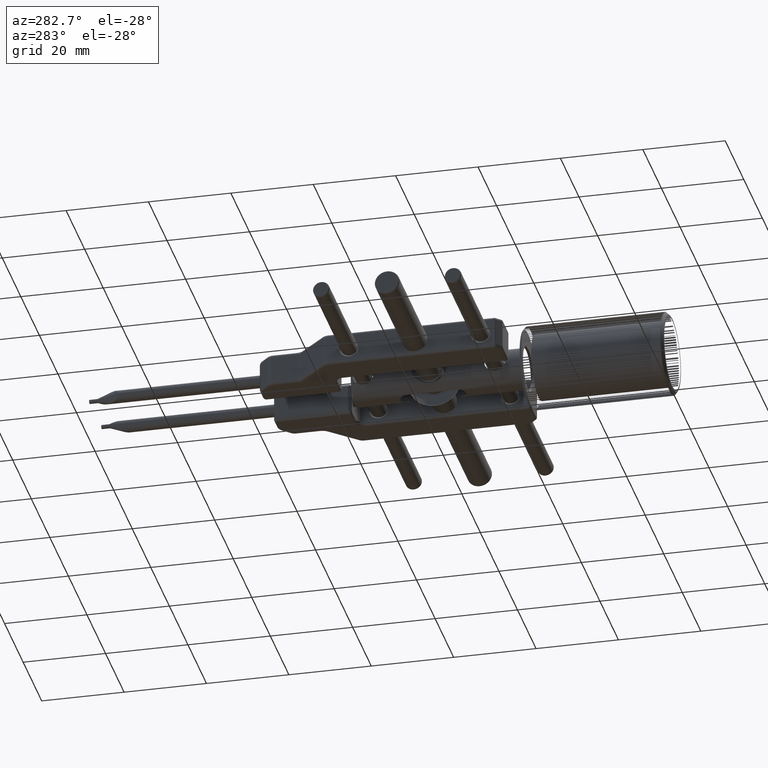
[diagram: clean part render]
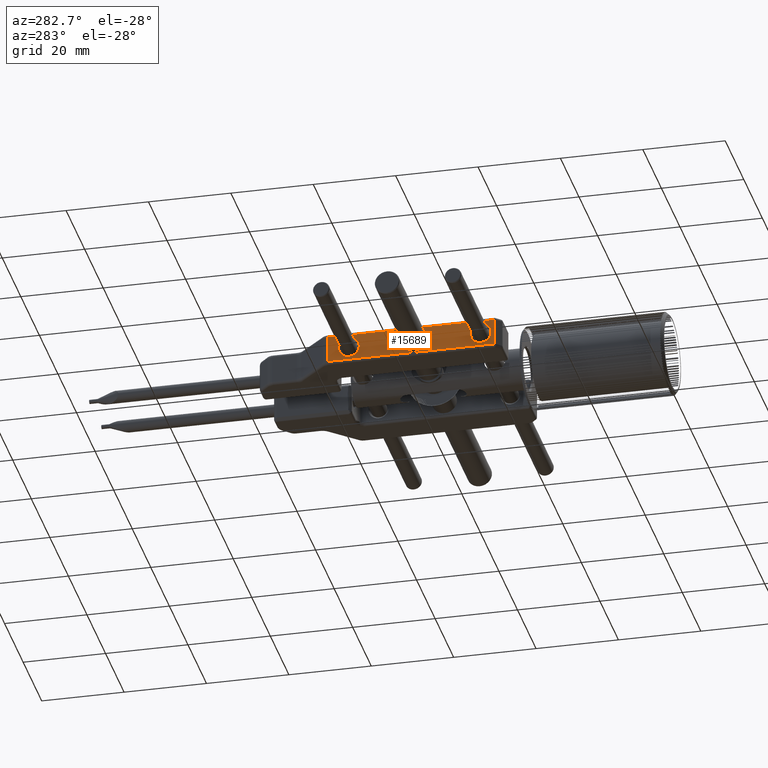
[diagram: same view with one face highlighted and labeled with its STEP entity id]
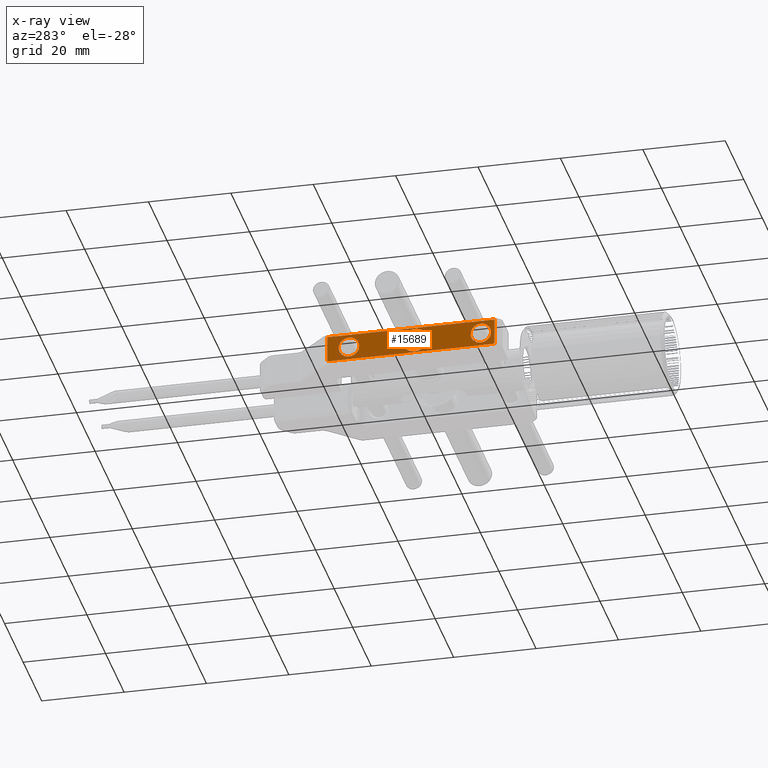
[diagram: x-ray of the same camera — body ghosted, the highlighted face saturated]
A machine part, auxiliary view. The second image highlights one B-rep face of the part: STEP entity #15689.
The next image is the same camera in x-ray: the body ghosted, the highlighted face saturated — about 0% of this face is hidden behind the body in this view.
In plain terms, the highlighted planar face has unit normal (1, 0, -0).
Its self-contained STEP definition (entity closure, byte-faithful):
#24 = CARTESIAN_POINT ( 'NONE',  ( 4.999999999999991118, -19.72962801546928091, -2.718744669488669885 ) ) ;
#250 = CARTESIAN_POINT ( 'NONE',  ( 4.999999999999992895, -24.00000000000000711, -0.3816654405975243858 ) ) ;
#882 = CARTESIAN_POINT ( 'NONE',  ( 4.999999999999986677, 0.9999999999999993339, 3.249999999999999556 ) ) ;
#1043 = CARTESIAN_POINT ( 'NONE',  ( 4.999999999999992006, -23.80664356347271848, 1.059872421203786441 ) ) ;
#2148 = CARTESIAN_POINT ( 'NONE',  ( 4.999999999999990230, -18.00000000000000711, -8.673617379884035472E-16 ) ) ;
#2273 = EDGE_LOOP ( 'NONE', ( #23018 ) ) ;
#2800 = CARTESIAN_POINT ( 'NONE',  ( 4.999999999999989342, -19.91976774133159012, 2.798882031327515563 ) ) ;
#2947 = CARTESIAN_POINT ( 'NONE',  ( 4.999999999999991118, -18.00000000000001066, -0.1906543481778608384 ) ) ;
#3168 = CARTESIAN_POINT ( 'NONE',  ( 4.999999999999990230, -19.26182743280707754, -2.460936086254958077 ) ) ;
#3841 = CARTESIAN_POINT ( 'NONE',  ( 4.999999999999992006, -23.74983098182548602, -1.199735456755939289 ) ) ;
#3897 = LINE ( 'NONE', #34543, #4188 ) ;
#4059 = CARTESIAN_POINT ( 'NONE',  ( 4.999999999999992006, -23.46093608625202975, -1.738172567194389284 ) ) ;
#4188 = VECTOR ( 'NONE', #25351, 1000.000000000000000 ) ;
#4402 = CARTESIAN_POINT ( 'NONE',  ( 4.999999999999989342, -22.12643122562515785, 2.780592659859205007 ) ) ;
#4640 = ORIENTED_EDGE ( 'NONE', *, *, #5926, .F. ) ;
#4895 = FACE_BOUND ( 'NONE', #2273, .T. ) ;
#5059 = VERTEX_POINT ( 'NONE', #27000 ) ;
#5075 = CARTESIAN_POINT ( 'NONE',  ( 4.999999999999991118, -22.97502420098260600, 2.267669013698190295 ) ) ;
#5293 = EDGE_CURVE ( 'NONE', #18533, #5059, #20542, .T. ) ;
#5301 = CARTESIAN_POINT ( 'NONE',  ( 4.999999999999991118, -22.27037198452968880, 2.718744669488931898 ) ) ;
#5525 = CARTESIAN_POINT ( 'NONE',  ( 4.999999999999991118, -20.05176401556488841, 2.846986231884434559 ) ) ;
#5622 = VECTOR ( 'NONE', #39680, 1000.000000000000000 ) ;
#5809 = ORIENTED_EDGE ( 'NONE', *, *, #32293, .F. ) ;
#5926 = EDGE_CURVE ( 'NONE', #5059, #7178, #37131, .T. ) ;
#5958 = CARTESIAN_POINT ( 'NONE',  ( 4.999999999999990230, -18.22999180854526102, 1.152281783656558645 ) ) ;
#6108 = ORIENTED_EDGE ( 'NONE', *, *, #5293, .F. ) ;
#6382 = CARTESIAN_POINT ( 'NONE',  ( 4.999999999999991118, -18.21941155917991040, 1.126441877344082743 ) ) ;
#6531 = CARTESIAN_POINT ( 'NONE',  ( 4.999999999999990230, -18.20111796867256260, -1.080232258668531342 ) ) ;
#6757 = CARTESIAN_POINT ( 'NONE',  ( 4.999999999999991118, -21.79076118556388053, -2.896920786178064589 ) ) ;
#6950 = EDGE_LOOP ( 'NONE', ( #26231, #28410 ) ) ;
#7178 = VERTEX_POINT ( 'NONE', #26285 ) ;
#7649 = CARTESIAN_POINT ( 'NONE',  ( 4.999999999999991118, -24.00000000000000000, -8.673617379884035472E-16 ) ) ;
#8221 = CARTESIAN_POINT ( 'NONE',  ( 4.999999999999991118, -23.89687656718543352, 0.7908729366529040350 ) ) ;
#8444 = CARTESIAN_POINT ( 'NONE',  ( 4.999999999999991118, -24.00000000000000000, -8.673617379884035472E-16 ) ) ;
#8716 = CIRCLE ( 'NONE', #15855, 2.499999999997726263 ) ;
#9254 = CIRCLE ( 'NONE', #32133, 2.500000000054569682 ) ;
#9757 = CARTESIAN_POINT ( 'NONE',  ( 4.999999999999990230, -18.28125533051035845, 1.270371984529477194 ) ) ;
#10128 = CARTESIAN_POINT ( 'NONE',  ( 4.999999999999991118, -21.19056920449134296, -3.000033690661043639 ) ) ;
#10566 = CARTESIAN_POINT ( 'NONE',  ( 4.999999999999990230, -18.00000000000000711, -8.673617379884035472E-16 ) ) ;
#11023 = CARTESIAN_POINT ( 'NONE',  ( 4.999999999999992006, -23.64046645543154668, -1.431382676231402362 ) ) ;
#11150 = CARTESIAN_POINT ( 'NONE',  ( 4.999999999999989342, -23.41391262871372092, 1.828623003282542347 ) ) ;
#11217 = DIRECTION ( 'NONE',  ( 1.613696256722611159E-16, -1.000000000000000000, -0.000000000000000000 ) ) ;
#12242 = CARTESIAN_POINT ( 'NONE',  ( 4.999999999999989342, -20.20923881443906467, 2.896920786178161844 ) ) ;
#12545 = DIRECTION ( 'NONE',  ( -0.000000000000000000, -0.000000000000000000, -1.000000000000000000 ) ) ;
#13112 = CARTESIAN_POINT ( 'NONE',  ( 4.999999999999989342, -21.74993057765304627, 2.929720796436643404 ) ) ;
#13471 = CARTESIAN_POINT ( 'NONE',  ( 4.999999999999990230, -18.36290914705503496, -1.489114048959041536 ) ) ;
#13693 = CARTESIAN_POINT ( 'NONE',  ( 4.999999999999990230, -19.87356877437475688, -2.780592659859195681 ) ) ;
#14152 = CARTESIAN_POINT ( 'NONE',  ( 4.999999999995453415, -5.000000000000004441, 2.499999999997725375 ) ) ;
#15596 = ORIENTED_EDGE ( 'NONE', *, *, #34905, .F. ) ;
#15689 = ADVANCED_FACE ( 'NONE', ( #32183, #4895, #32621, #25680 ), #35534, .F. ) ;
#15808 = CARTESIAN_POINT ( 'NONE',  ( 4.999999999999989342, -18.35953354456457021, 1.431382676228175388 ) ) ;
#15855 = AXIS2_PLACEMENT_3D ( 'NONE', #34545, #30528, #37435 ) ;
#16376 = CARTESIAN_POINT ( 'NONE',  ( 4.999999999999990230, -18.10312343281456293, -0.7908729366524428483 ) ) ;
#16598 = CARTESIAN_POINT ( 'NONE',  ( 4.999999999999989342, -18.15303956252799011, -0.9483011725718190066 ) ) ;
#16819 = CARTESIAN_POINT ( 'NONE',  ( 4.999999999999991118, -19.56861732376969343, -2.640466455433738258 ) ) ;
#17494 = CARTESIAN_POINT ( 'NONE',  ( 4.999999999999991118, -24.00000000000000000, -8.673617379884035472E-16 ) ) ;
#17529 = EDGE_LOOP ( 'NONE', ( #4640, #6108, #5809, #15596 ) ) ;
#17713 = CARTESIAN_POINT ( 'NONE',  ( 4.999999999999992895, -23.78058844082009671, -1.126441877343508313 ) ) ;
#18087 = VERTEX_POINT ( 'NONE', #10566 ) ;
#18160 = CARTESIAN_POINT ( 'NONE',  ( 4.999999999999989342, -22.48911404896558608, -2.637090852940088492 ) ) ;
#18533 = VERTEX_POINT ( 'NONE', #28143 ) ;
#18957 = CARTESIAN_POINT ( 'NONE',  ( 4.999999999999990230, -22.19973545675493298, 2.749830981826411502 ) ) ;
#19435 = DIRECTION ( 'NONE',  ( -1.613696256722611159E-16, 1.000000000000000000, 0.000000000000000000 ) ) ;
#19614 = CARTESIAN_POINT ( 'NONE',  ( 4.999999999999990230, -21.38113840897817397, 2.999932618677758622 ) ) ;
#19699 = AXIS2_PLACEMENT_3D ( 'NONE', #22346, #35978, #19435 ) ;
#19963 = CARTESIAN_POINT ( 'NONE',  ( 4.999999999999991118, -18.02632938710159394, -0.4716806253969578200 ) ) ;
#20183 = CARTESIAN_POINT ( 'NONE',  ( 4.999999999999989342, -18.58608737128896138, -1.828623003283233572 ) ) ;
#20542 = LINE ( 'NONE', #28281, #5622 ) ;
#21041 = EDGE_CURVE ( 'NONE', #29843, #18087, #39866, .T. ) ;
#21091 = CARTESIAN_POINT ( 'NONE',  ( 4.999999999995453415, -37.00000000000000711, 2.500000000054568794 ) ) ;
#21859 = EDGE_CURVE ( 'NONE', #18087, #29843, #30667, .T. ) ;
#21864 = CARTESIAN_POINT ( 'NONE',  ( 4.999999999999989342, -23.84696043747200633, 0.9483011725720873475 ) ) ;
#22085 = CARTESIAN_POINT ( 'NONE',  ( 4.999999999999992895, -24.00000000000000711, 0.1906543481782115301 ) ) ;
#22346 = CARTESIAN_POINT ( 'NONE',  ( 4.999999999999986677, 0.9999999999999993339, 3.999999999999999112 ) ) ;
#22532 = CARTESIAN_POINT ( 'NONE',  ( 4.999999999999990230, -18.00000000000000711, 0.3816654405882977108 ) ) ;
#22728 = VECTOR ( 'NONE', #11217, 1000.000000000000000 ) ;
#22966 = CARTESIAN_POINT ( 'NONE',  ( 4.999999999999991118, -19.51088595103899692, 2.637090852943673180 ) ) ;
#23018 = ORIENTED_EDGE ( 'NONE', *, *, #35667, .F. ) ;
#23318 = CARTESIAN_POINT ( 'NONE',  ( 4.999999999999990230, -18.00000000000000711, -8.673617379884035472E-16 ) ) ;
#23476 = CARTESIAN_POINT ( 'NONE',  ( 4.999999999999993783, -40.29289321881344677, 3.999999999999999112 ) ) ;
#23527 = CARTESIAN_POINT ( 'NONE',  ( 4.999999999999989342, -18.17690056958880618, -1.015305862314046959 ) ) ;
#23752 = CARTESIAN_POINT ( 'NONE',  ( 4.999999999999991118, -21.47153162394554471, -2.973729571555237428 ) ) ;
#24214 = ORIENTED_EDGE ( 'NONE', *, *, #28652, .F. ) ;
#24434 = VERTEX_POINT ( 'NONE', #21091 ) ;
#24766 = CARTESIAN_POINT ( 'NONE',  ( 4.999999999999990230, -22.15228178365663325, 2.770008191454514268 ) ) ;
#25075 = CARTESIAN_POINT ( 'NONE',  ( 4.999999999999992006, -23.71874466948739624, -1.270371984531361242 ) ) ;
#25351 = DIRECTION ( 'NONE',  ( -1.613696256722611159E-16, 1.000000000000000000, 0.000000000000000000 ) ) ;
#25680 = FACE_BOUND ( 'NONE', #30328, .T. ) ;
#26008 = CARTESIAN_POINT ( 'NONE',  ( 4.999999999995453415, -37.00000000000000711, -8.673617379884035472E-16 ) ) ;
#26077 = CARTESIAN_POINT ( 'NONE',  ( 4.999999999999992006, -20.52846837605840236, 2.973729571555369322 ) ) ;
#26231 = ORIENTED_EDGE ( 'NONE', *, *, #21859, .F. ) ;
#26285 = CARTESIAN_POINT ( 'NONE',  ( 4.999999999999993783, -40.29289321881344677, 3.249999999999999556 ) ) ;
#26729 = CARTESIAN_POINT ( 'NONE',  ( 4.999999999999991118, -20.80943079551091657, 3.000033690661119135 ) ) ;
#27000 = CARTESIAN_POINT ( 'NONE',  ( 4.999999999999986677, 0.2116736387595408719, 3.249999999999999556 ) ) ;
#27085 = CARTESIAN_POINT ( 'NONE',  ( 4.999999999999991118, -20.25006942234820428, -2.929720796436799279 ) ) ;
#27311 = CARTESIAN_POINT ( 'NONE',  ( 4.999999999999990230, -22.05985180046712202, -2.806651722929677906 ) ) ;
#28115 = CARTESIAN_POINT ( 'NONE',  ( 4.999999999999989342, -23.79888203132754398, 1.080232258668289091 ) ) ;
#28143 = CARTESIAN_POINT ( 'NONE',  ( 4.999999999999986677, 0.2116736387595409830, -3.250000000000001776 ) ) ;
#28281 = CARTESIAN_POINT ( 'NONE',  ( 4.999999999999986677, 0.2116736387595408164, 3.999999999999999112 ) ) ;
#28410 = ORIENTED_EDGE ( 'NONE', *, *, #21041, .F. ) ;
#28428 = CARTESIAN_POINT ( 'NONE',  ( 4.999999999999990230, -23.26766901369617102, -1.975024200984784928 ) ) ;
#28652 = EDGE_CURVE ( 'NONE', #24434, #24434, #9254, .T. ) ;
#29445 = CARTESIAN_POINT ( 'NONE',  ( 4.999999999999991118, -18.07021169893757317, 0.7497601501501692800 ) ) ;
#29664 = CARTESIAN_POINT ( 'NONE',  ( 4.999999999999991118, -18.25016901817315684, 1.199735456754804197 ) ) ;
#29843 = VERTEX_POINT ( 'NONE', #7649 ) ;
#30328 = EDGE_LOOP ( 'NONE', ( #24214 ) ) ;
#30464 = CARTESIAN_POINT ( 'NONE',  ( 4.999999999999992006, -19.84771821634303990, -2.770008191454431223 ) ) ;
#30528 = DIRECTION ( 'NONE',  ( -1.000000000000000000, 0.000000000000000000, 0.000000000000000000 ) ) ;
#30667 = B_SPLINE_CURVE_WITH_KNOTS ( 'NONE', 3,
 ( #23318, #2947, #19963, #16376, #16598, #23527, #37160, #6531, #13471, #20183, #33809, #3168, #16819, #24, #40980, #30464, #13693, #27085, #40755, #10128, #23752, #6757, #34030, #30689, #27311, #37600, #18160, #34479, #28428, #4059, #11023, #25075, #3841, #41203, #17713, #38490, #250, #17494 ),
 .UNSPECIFIED., .F., .F.,
 ( 4, 1, 1, 1, 2, 2, 2, 1, 1, 1, 2, 2, 2, 1, 1, 1, 2, 2, 2, 1, 1, 1, 2, 2, 4 ),
 ( 0.000000000000000000, 0.06250000000000401068, 0.09375000000000588418, 0.1093750000000066613, 0.1171875000000070360, 0.1250000000000074107, 0.2500000000000081046, 0.3125000000000081046, 0.3437500000000084932, 0.3593750000000082712, 0.3671875000000081601, 0.3750000000000080491, 0.4999999999999975020, 0.5624999999999927836, 0.5937499999999898970, 0.6093749999999884537, 0.6171874999999883427, 0.6249999999999881206, 0.7499999999999945599, 0.8124999999999975575, 0.8437499999999992228, 0.8593749999999998890, 0.8671875000000001110, 0.8750000000000004441, 1.000000000000000000 ),
 .UNSPECIFIED. ) ;
#30689 = CARTESIAN_POINT ( 'NONE',  ( 4.999999999999990230, -22.01526661639603333, -2.823114959700274706 ) ) ;
#32133 = AXIS2_PLACEMENT_3D ( 'NONE', #26008, #39881, #39653 ) ;
#32183 = FACE_OUTER_BOUND ( 'NONE', #17529, .T. ) ;
#32293 = EDGE_CURVE ( 'NONE', #32512, #18533, #3897, .T. ) ;
#32512 = VERTEX_POINT ( 'NONE', #34702 ) ;
#32621 = FACE_BOUND ( 'NONE', #6950, .T. ) ;
#33446 = CARTESIAN_POINT ( 'NONE',  ( 4.999999999999988454, -19.98473338360498630, 2.823114959700309345 ) ) ;
#33809 = CARTESIAN_POINT ( 'NONE',  ( 4.999999999999991118, -19.02497579901605462, -2.267669013697847014 ) ) ;
#34030 = CARTESIAN_POINT ( 'NONE',  ( 4.999999999999991118, -21.94823598443682755, -2.846986231884376828 ) ) ;
#34479 = CARTESIAN_POINT ( 'NONE',  ( 4.999999999999991118, -22.82862300328658733, -2.413912628709356856 ) ) ;
#34543 = CARTESIAN_POINT ( 'NONE',  ( 4.999999999999987566, 0.9999999999999993339, -3.250000000000001776 ) ) ;
#34545 = CARTESIAN_POINT ( 'NONE',  ( 4.999999999995453415, -5.000000000000004441, -8.673617379884035472E-16 ) ) ;
#34702 = CARTESIAN_POINT ( 'NONE',  ( 4.999999999999993783, -40.29289321881209673, -3.250000000000001776 ) ) ;
#34722 = VERTEX_POINT ( 'NONE', #14152 ) ;
#34905 = EDGE_CURVE ( 'NONE', #7178, #32512, #43857, .T. ) ;
#35499 = CARTESIAN_POINT ( 'NONE',  ( 4.999999999999992895, -23.82309943041121159, 1.015305862314206831 ) ) ;
#35534 = PLANE ( 'NONE',  #19699 ) ;
#35667 = EDGE_CURVE ( 'NONE', #34722, #34722, #8716, .T. ) ;
#35707 = CARTESIAN_POINT ( 'NONE',  ( 4.999999999999991118, -23.63709085294314960, 1.489114048962864700 ) ) ;
#35938 = CARTESIAN_POINT ( 'NONE',  ( 4.999999999999990230, -22.43138267622853022, 2.640466455434189896 ) ) ;
#35978 = DIRECTION ( 'NONE',  ( 1.000000000000000000, 1.613696256722611159E-16, -0.000000000000000000 ) ) ;
#36583 = CARTESIAN_POINT ( 'NONE',  ( 4.999999999999992006, -18.73233098630086957, 1.975024200982325562 ) ) ;
#37131 = LINE ( 'NONE', #882, #22728 ) ;
#37160 = CARTESIAN_POINT ( 'NONE',  ( 4.999999999999991118, -18.19335643652728862, -1.059872421203703841 ) ) ;
#37435 = DIRECTION ( 'NONE',  ( 0.000000000000000000, 0.000000000000000000, 1.000000000000000000 ) ) ;
#37600 = CARTESIAN_POINT ( 'NONE',  ( 4.999999999999989342, -22.08023225866811146, -2.798882031327739384 ) ) ;
#38490 = CARTESIAN_POINT ( 'NONE',  ( 4.999999999999992895, -23.92978830106244104, -0.7497601501593958995 ) ) ;
#38848 = CARTESIAN_POINT ( 'NONE',  ( 4.999999999999992006, -23.97367061289840962, 0.4716806253975728835 ) ) ;
#39653 = DIRECTION ( 'NONE',  ( 0.000000000000000000, 0.000000000000000000, 1.000000000000000000 ) ) ;
#39680 = DIRECTION ( 'NONE',  ( 0.000000000000000000, 0.000000000000000000, 1.000000000000000000 ) ) ;
#39731 = CARTESIAN_POINT ( 'NONE',  ( 4.999999999999990230, -19.94014819953341089, 2.806651722929697002 ) ) ;
#39866 = B_SPLINE_CURVE_WITH_KNOTS ( 'NONE', 3,
 ( #8444, #22085, #38848, #8221, #21864, #35499, #1043, #28115, #35707, #11150, #5075, #42672, #35938, #5301, #18957, #24766, #4402, #13112, #19614, #26729, #26077, #12242, #5525, #33446, #39731, #2800, #22966, #43108, #36583, #43767, #15808, #9757, #29664, #5958, #6382, #29445, #22532, #2148 ),
 .UNSPECIFIED., .F., .F.,
 ( 4, 1, 1, 1, 2, 2, 2, 1, 1, 1, 2, 2, 2, 1, 1, 1, 2, 2, 2, 1, 1, 1, 2, 2, 4 ),
 ( 0.000000000000000000, 0.06249999999999876488, 0.09374999999999802935, 0.1093749999999978073, 0.1171874999999976685, 0.1249999999999975298, 0.2499999999999951705, 0.3124999999999939493, 0.3437499999999933387, 0.3593749999999930056, 0.3671874999999933387, 0.3749999999999936717, 0.4999999999999954481, 0.5624999999999968914, 0.5937499999999970024, 0.6093749999999971134, 0.6171874999999971134, 0.6249999999999972244, 0.7499999999999973355, 0.8124999999999970024, 0.8437499999999972244, 0.8593749999999973355, 0.8671874999999974465, 0.8749999999999974465, 1.000000000000000000 ),
 .UNSPECIFIED. ) ;
#39881 = DIRECTION ( 'NONE',  ( -1.000000000000000000, 0.000000000000000000, 0.000000000000000000 ) ) ;
#40755 = CARTESIAN_POINT ( 'NONE',  ( 4.999999999999989342, -20.61886159101732474, -2.999932618677913165 ) ) ;
#40980 = CARTESIAN_POINT ( 'NONE',  ( 4.999999999999991118, -19.80026454324444884, -2.749830981826253407 ) ) ;
#41203 = CARTESIAN_POINT ( 'NONE',  ( 4.999999999999990230, -23.77000819145402843, -1.152281783657155945 ) ) ;
#42672 = CARTESIAN_POINT ( 'NONE',  ( 4.999999999999990230, -22.73817256719057056, 2.460936086255559374 ) ) ;
#42980 = VECTOR ( 'NONE', #12545, 1000.000000000000000 ) ;
#43108 = CARTESIAN_POINT ( 'NONE',  ( 4.999999999999990230, -19.17137699671933149, 2.413912628714269371 ) ) ;
#43767 = CARTESIAN_POINT ( 'NONE',  ( 4.999999999999991118, -18.53906391374280105, 1.738172567190087392 ) ) ;
#43857 = LINE ( 'NONE', #23476, #42980 ) ;